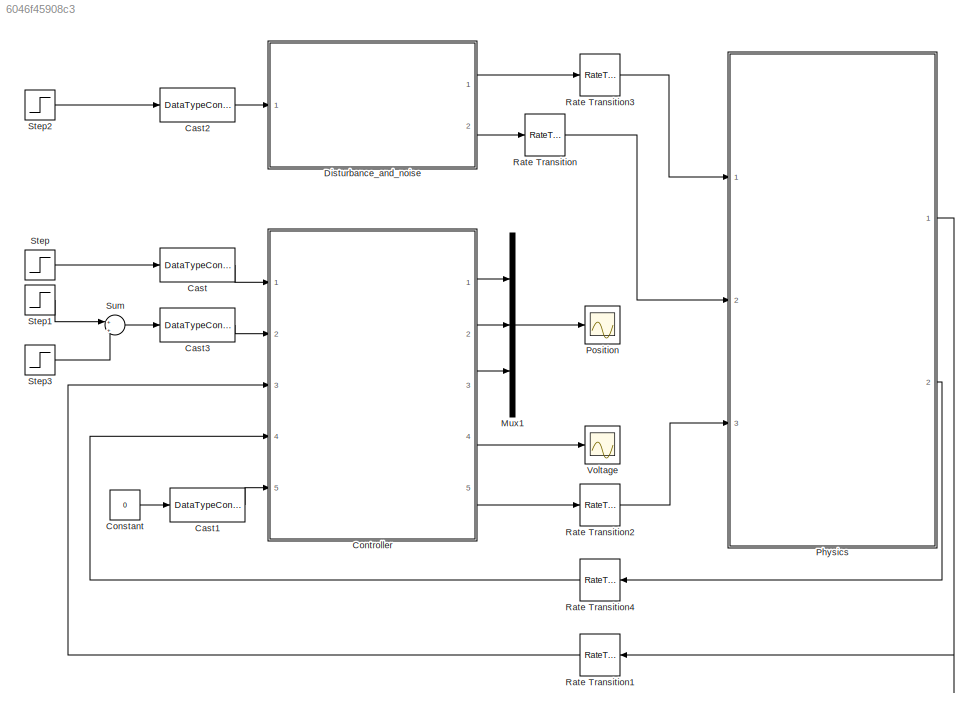
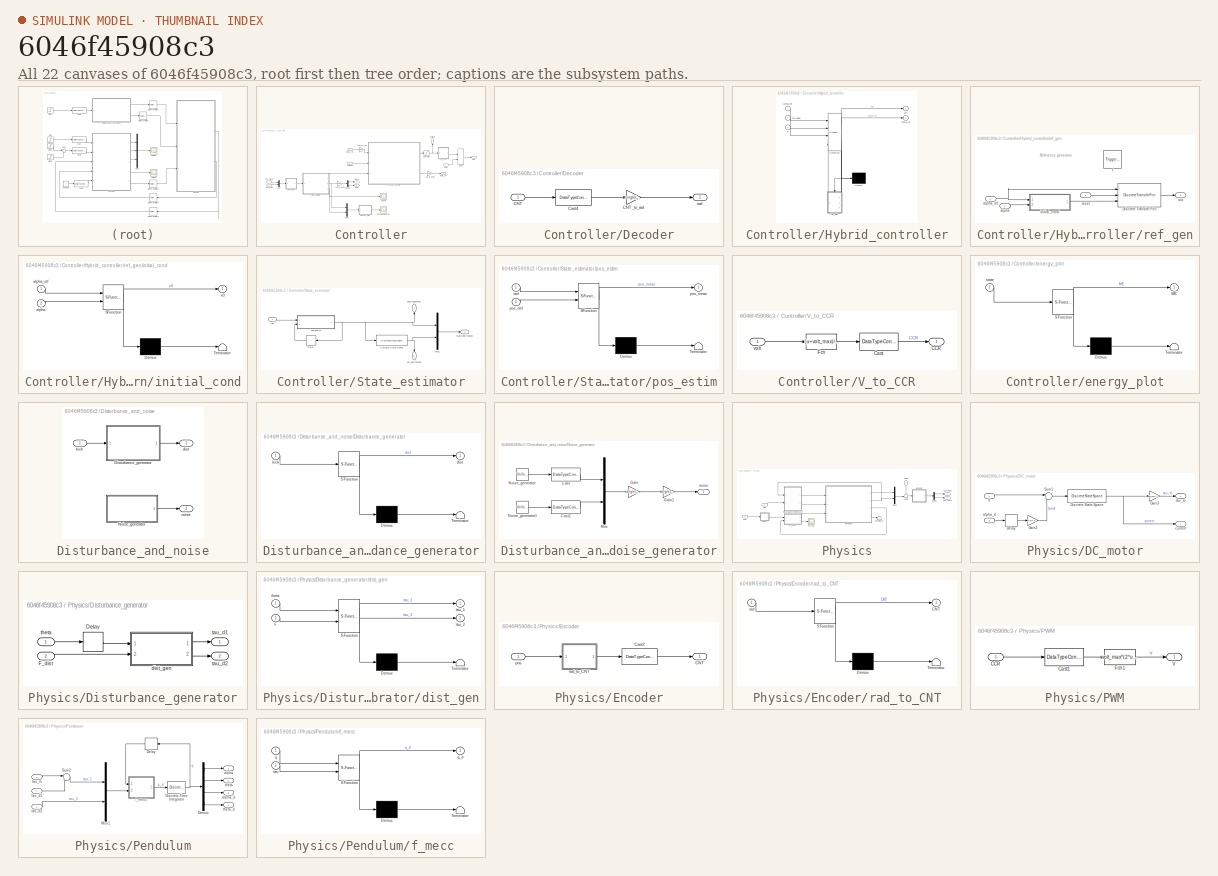
[diagram: thumbnail index - all 22 canvases of the model, root first then tree order]
MODEL slx_6046f45908c3
KIND model
CONFIG AbsTol = auto
CONFIG EnableMultiTasking = off
CONFIG FixedStep = Ts_proc
CONFIG MaxStep = auto
CONFIG MinStep = auto
CONFIG RelTol = 1e-3
CONFIG SampleTimeConstraint = Unconstrained
CONFIG Solver = FixedStepDiscrete
CONFIG SolverName = FixedStepDiscrete
CONFIG StartTime = 0.0
CONFIG StopTime = 25
WORKSPACE source: external: MAT-File  (data not in archive)
BLOCK [DataTypeConversion] Cast
  OutDataTypeStr = single
  RndMeth = Floor
  SaturateOnIntegerOverflow = off
BLOCK [DataTypeConversion] Cast1
  OutDataTypeStr = uint8
  RndMeth = Floor
  SaturateOnIntegerOverflow = off
BLOCK [DataTypeConversion] Cast2
  OutDataTypeStr = uint8
  RndMeth = Floor
  SaturateOnIntegerOverflow = off
BLOCK [DataTypeConversion] Cast3
  OutDataTypeStr = uint8
  RndMeth = Floor
  SaturateOnIntegerOverflow = off
BLOCK [Constant] Constant
  Value = 0
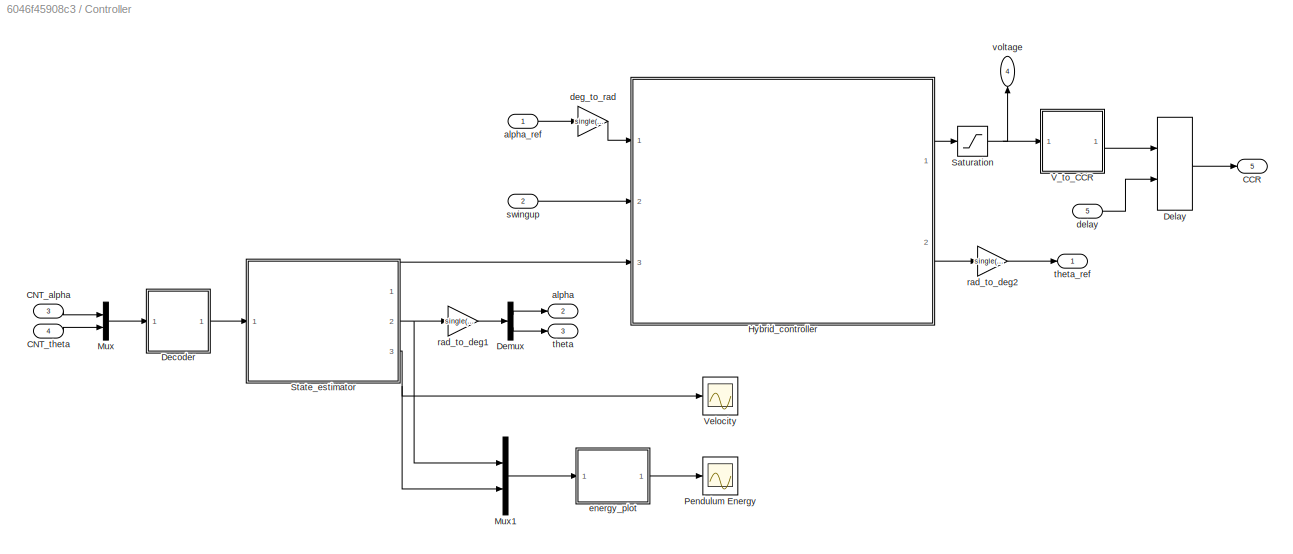
BLOCK [SubSystem] Controller
  FunctionInterfaceSpec = Allow arguments
  Ports = [5, 5]
  RTWFcnName = controller
  RTWFcnNameOpts = User specified
  RTWFileNameOpts = Use function name
  RTWSystemCode = Nonreusable function
  RequestExecContextInheritance = off
  TreatAsAtomicUnit = on
BLOCK [Outport] Controller/CCR
  IconDisplay = Port number
  Port = 5
BLOCK [Inport] Controller/CNT_alpha
  IconDisplay = Port number
  Port = 3
BLOCK [Inport] Controller/CNT_theta
  IconDisplay = Port number
  Port = 4
BLOCK [SubSystem] Controller/Decoder
  Ports = [1, 1]
  RequestExecContextInheritance = off
BLOCK [Inport] Controller/Decoder/CNT
  IconDisplay = Port number
BLOCK [Gain] Controller/Decoder/CNT_to_rad
  Gain = single(2*pi)/encoder_res
  OutDataTypeStr = Inherit: Inherit via internal rule
  ParamDataTypeStr = Inherit: Inherit via internal rule
  SaturateOnIntegerOverflow = off
BLOCK [DataTypeConversion] Controller/Decoder/Cast4
  OutDataTypeStr = single
  RndMeth = Floor
  SaturateOnIntegerOverflow = off
BLOCK [Outport] Controller/Decoder/rad
  IconDisplay = Port number
BLOCK [Delay] Controller/Delay
  DelayLength = delay_input
  DelayLengthSource = Input port
  DelayLengthUpperLimit = 255
  InitialCondition = CCR_init
  InputPortMap = u0,p1
  Ports = [2, 1]
BLOCK [Demux] Controller/Demux
  DisplayOption = bar
  Outputs = 2
  Ports = [1, 2]
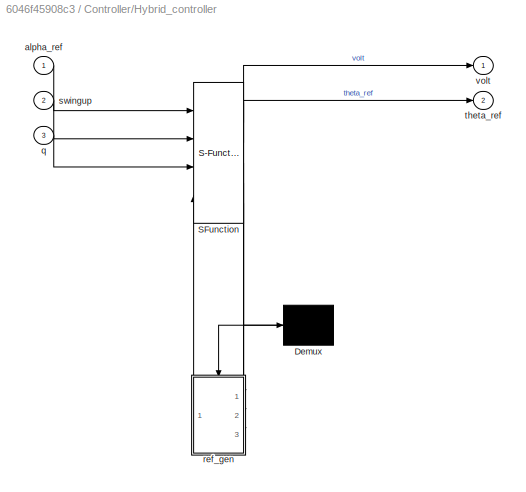
BLOCK [SubSystem] Controller/Hybrid_controller
  BlockKeywords = __PRM__SERIALIZED__DATA__:Stateflow Chart,Stateflow Diagram
  ErrorFcn = Stateflow.Translate.translate
  PermitHierarchicalResolution = ExplicitOnly
  Ports = [3, 2]
  RequestExecContextInheritance = off
  SFBlockType = Chart
  TreatAsAtomicUnit = on
BLOCK [Demux] Controller/Hybrid_controller/ Demux 
  Outputs = 1
  Ports = [1, 1]
BLOCK [S-Function] Controller/Hybrid_controller/ SFunction 
  EnableBusSupport = on
  FunctionName = sf_sfun
  Parameters = Jp,Larm,g,lp,mp,par_ctrl,th_lim,volt_max
  PortCounts = [4 6]
  Ports = [4, 6]
  SFcnIsStateOwnerBlock = off
  SFunctionDeploymentMode = off
  Tag = Stateflow S-Function 5
BLOCK [Inport] Controller/Hybrid_controller/alpha_ref
  IconDisplay = Port number
BLOCK [Inport] Controller/Hybrid_controller/q
  IconDisplay = Port number
  Port = 3
BLOCK [SubSystem] Controller/Hybrid_controller/ref_gen
  Ports = [3, 1, 0, 1]
  PreDeleteFcn = Stateflow.SLINSF.SimulinkMan.removePreDeleteFcn
  RequestExecContextInheritance = off
  UndoDeleteFcn = Stateflow.SLINSF.SimulinkMan.restorePreDeleteFcn
BLOCK [DiscreteTransferFcn] Controller/Hybrid_controller/ref_gen/Discrete Transfer Fcn
  Denominator = par_ctrl.ref_gen_den
  ExternalReset = Falling
  InitialStatesSource = Input port
  InputPortMap = u0,r7,p5
  Numerator = par_ctrl.ref_gen_num
  Ports = [3, 1]
BLOCK [Inport] Controller/Hybrid_controller/ref_gen/alpha
  IconDisplay = Port number
  OutDataTypeStr = single
  Port = 2
  PortDimensions = 1
  SignalType = real
  VarSizeSig = No
BLOCK [Inport] Controller/Hybrid_controller/ref_gen/alpha_ref
  IconDisplay = Port number
  OutDataTypeStr = single
  PortDimensions = 1
  SignalType = real
  VarSizeSig = No
BLOCK [TriggerPort] Controller/Hybrid_controller/ref_gen/f
  CopyFcn = Stateflow.SLINSF.SimulinkMan.removeBlockPreDeleteFcn
  Ports = []
  PreDeleteFcn = Stateflow.SLINSF.SimulinkMan.unsafePredeleteFcn
  StatesWhenEnabling = held
  TriggerType = function-call
  VariantControl = (inherit)
BLOCK [SubSystem] Controller/Hybrid_controller/ref_gen/initial_cond
  ErrorFcn = Stateflow.Translate.translate
  PermitHierarchicalResolution = ExplicitOnly
  Ports = [2, 1]
  RequestExecContextInheritance = off
  SFBlockType = MATLAB Function
BLOCK [Demux] Controller/Hybrid_controller/ref_gen/initial_cond/ Demux 
  Outputs = 1
  Ports = [1, 1]
BLOCK [S-Function] Controller/Hybrid_controller/ref_gen/initial_cond/ SFunction 
  EnableBusSupport = off
  FunctionName = sf_sfun
  Parameters = par_ctrl
  PortCounts = [2 2]
  Ports = [2, 2]
  SFcnIsStateOwnerBlock = off
  SFunctionDeploymentMode = off
  Tag = Stateflow S-Function 8
BLOCK [Terminator] Controller/Hybrid_controller/ref_gen/initial_cond/ Terminator 
BLOCK [Inport] Controller/Hybrid_controller/ref_gen/initial_cond/alpha
  IconDisplay = Port number
  Port = 2
BLOCK [Inport] Controller/Hybrid_controller/ref_gen/initial_cond/alpha_ref
  IconDisplay = Port number
BLOCK [Outport] Controller/Hybrid_controller/ref_gen/initial_cond/x0
  IconDisplay = Port number
BLOCK [Outport] Controller/Hybrid_controller/ref_gen/out
  IconDisplay = Port number
  OutDataTypeStr = single
BLOCK [Inport] Controller/Hybrid_controller/ref_gen/reset
  IconDisplay = Port number
  OutDataTypeStr = int8
  Port = 3
  PortDimensions = 1
  SignalType = real
  VarSizeSig = No
BLOCK [Inport] Controller/Hybrid_controller/swingup
  IconDisplay = Port number
  Port = 2
BLOCK [Outport] Controller/Hybrid_controller/theta_ref
  IconDisplay = Port number
  Port = 2
BLOCK [Outport] Controller/Hybrid_controller/volt
  IconDisplay = Port number
BLOCK [Mux] Controller/Mux
  DisplayOption = bar
  Inputs = 2
  Ports = [2, 1]
BLOCK [Mux] Controller/Mux1
  DisplayOption = bar
  Inputs = 2
  Ports = [2, 1]
BLOCK [Scope] Controller/Pendulum Energy
  Floating = off
  NumInputPorts = 1
  Ports = [1]
  ScopeSpecificationString = Simulink.scopes.TimeScopeBlockCfg('CurrentConfiguration', extmgr.ConfigurationSet(extmgr.Configuration('Core','General UI',true),extmgr.Configuration('Core','Source UI',true),extmgr.Configuration('Sources','WiredSimulink',true,'DataLoggingVariableName','ScopeData1'),extmgr.Configuration('Visuals','Time Domain',true,'SerializedDisplays',{struct('MinYLimReal','-0.45894','MaxYLimReal','0.24336','YLab...<+1545ch>
BLOCK [Saturate] Controller/Saturation
  InputPortMap = u0
  LowerLimit = -volt_max
  Ports = [1, 1]
  UpperLimit = volt_max
BLOCK [SubSystem] Controller/State_estimator
  Ports = [1, 3]
  RequestExecContextInheritance = off
BLOCK [Delay] Controller/State_estimator/Delay
  DelayLength = 1
  InitialCondition = q_init
  InputPortMap = u0
  Ports = [1, 1]
BLOCK [DiscreteStateSpace] Controller/State_estimator/Discrete State-Space
  A = dpole_cut*eye(2)
  B = eye(2)
  C = -1/single(Ts_ctrl)*(1-dpole_cut)^2*eye(2)
  D = (1-dpole_cut)/single(Ts_ctrl)*eye(2)
  InitialCondition = 1/(1-dpole_cut)*eye(2)*q_init
  SampleTime = Ts_ctrl
BLOCK [Mux] Controller/State_estimator/Mux1
  DisplayOption = bar
  Inputs = 2
  Ports = [2, 1]
BLOCK [SubSystem] Controller/State_estimator/pos_estim
  ErrorFcn = Stateflow.Translate.translate
  PermitHierarchicalResolution = ExplicitOnly
  Ports = [2, 1]
  RequestExecContextInheritance = off
  SFBlockType = MATLAB Function
BLOCK [Demux] Controller/State_estimator/pos_estim/ Demux 
  Outputs = 1
  Ports = [1, 1]
BLOCK [S-Function] Controller/State_estimator/pos_estim/ SFunction 
  EnableBusSupport = on
  FunctionName = sf_sfun
  PortCounts = [2 2]
  Ports = [2, 2]
  SFcnIsStateOwnerBlock = off
  SFunctionDeploymentMode = off
  Tag = Stateflow S-Function 4
BLOCK [Terminator] Controller/State_estimator/pos_estim/ Terminator 
BLOCK [Outport] Controller/State_estimator/pos_estim/pos_meas
  IconDisplay = Port number
BLOCK [Inport] Controller/State_estimator/pos_estim/pos_old
  IconDisplay = Port number
  Port = 2
BLOCK [Inport] Controller/State_estimator/pos_estim/rad
  IconDisplay = Port number
BLOCK [Outport] Controller/State_estimator/pos_measured
  IconDisplay = Port number
  Port = 2
BLOCK [Inport] Controller/State_estimator/rad
  IconDisplay = Port number
BLOCK [Outport] Controller/State_estimator/state_estimated
  IconDisplay = Port number
BLOCK [Outport] Controller/State_estimator/vel_estimated
  IconDisplay = Port number
  Port = 3
BLOCK [SubSystem] Controller/V_to_CCR
  Ports = [1, 1]
  RequestExecContextInheritance = off
BLOCK [Outport] Controller/V_to_CCR/CCR
  IconDisplay = Port number
BLOCK [DataTypeConversion] Controller/V_to_CCR/Cast
  OutDataTypeStr = uint16
  RndMeth = Round
  SaturateOnIntegerOverflow = off
BLOCK [Fcn] Controller/V_to_CCR/Fcn
  Expr = (u+volt_max)/(2*volt_max)*CCR_max
BLOCK [Inport] Controller/V_to_CCR/volt
  IconDisplay = Port number
BLOCK [Scope] Controller/Velocity
  Floating = off
  NumInputPorts = 1
  Ports = [1]
  ScopeSpecificationString = Simulink.scopes.TimeScopeBlockCfg('CurrentConfiguration', extmgr.ConfigurationSet(extmgr.Configuration('Core','General UI',true),extmgr.Configuration('Core','Source UI',true),extmgr.Configuration('Sources','WiredSimulink',true,'DataLoggingVariableName','ScopeData3'),extmgr.Configuration('Visuals','Time Domain',true,'SerializedDisplays',{struct('MinYLimReal','-101.3392','MaxYLimReal','780.14161','Y...<+1637ch>
BLOCK [Outport] Controller/alpha
  IconDisplay = Port number
  Port = 2
BLOCK [Inport] Controller/alpha_ref
  IconDisplay = Port number
BLOCK [Gain] Controller/deg_to_rad
  Gain = single(pi/180)
  OutDataTypeStr = Inherit: Inherit via internal rule
  ParamDataTypeStr = Inherit: Inherit via internal rule
  SaturateOnIntegerOverflow = off
BLOCK [Inport] Controller/delay
  IconDisplay = Port number
  Port = 5
BLOCK [SubSystem] Controller/energy_plot
  ErrorFcn = Stateflow.Translate.translate
  PermitHierarchicalResolution = ExplicitOnly
  Ports = [1, 1]
  RequestExecContextInheritance = off
  SFBlockType = MATLAB Function
BLOCK [Demux] Controller/energy_plot/ Demux 
  Outputs = 1
  Ports = [1, 1]
BLOCK [S-Function] Controller/energy_plot/ SFunction 
  EnableBusSupport = on
  FunctionName = sf_sfun
  Parameters = Jp,Larm,g,lp,mp
  PortCounts = [1 2]
  Ports = [1, 2]
  SFcnIsStateOwnerBlock = off
  SFunctionDeploymentMode = off
  Tag = Stateflow S-Function 6
BLOCK [Terminator] Controller/energy_plot/ Terminator 
BLOCK [Outport] Controller/energy_plot/ME
  IconDisplay = Port number
BLOCK [Inport] Controller/energy_plot/state
  IconDisplay = Port number
BLOCK [Gain] Controller/rad_to_deg1
  Gain = single(180/pi)
  OutDataTypeStr = Inherit: Inherit via internal rule
  ParamDataTypeStr = Inherit: Inherit via internal rule
  SaturateOnIntegerOverflow = off
BLOCK [Gain] Controller/rad_to_deg2
  Gain = single(180/pi)
  OutDataTypeStr = Inherit: Inherit via internal rule
  ParamDataTypeStr = Inherit: Inherit via internal rule
  SaturateOnIntegerOverflow = off
BLOCK [Inport] Controller/swingup
  IconDisplay = Port number
  Port = 2
BLOCK [Outport] Controller/theta
  IconDisplay = Port number
  Port = 3
BLOCK [Outport] Controller/theta_ref
  IconDisplay = Port number
BLOCK [Outport] Controller/voltage
  IconDisplay = Port number
  Port = 4
BLOCK [SubSystem] Disturbance_and_noise
  FunctionInterfaceSpec = Allow arguments
  Ports = [1, 2]
  RTWFcnName = disturbance_and_noise
  RTWFcnNameOpts = User specified
  RTWFileNameOpts = Use function name
  RTWSystemCode = Nonreusable function
  RequestExecContextInheritance = off
  TreatAsAtomicUnit = on
BLOCK [SubSystem] Disturbance_and_noise/Disturbance_generator
  BlockKeywords = __PRM__SERIALIZED__DATA__:Stateflow Chart,Stateflow Diagram
  ErrorFcn = Stateflow.Translate.translate
  PermitHierarchicalResolution = ExplicitOnly
  Ports = [1, 1]
  RequestExecContextInheritance = off
  SFBlockType = Chart
  TreatAsAtomicUnit = on
BLOCK [Demux] Disturbance_and_noise/Disturbance_generator/ Demux 
  Outputs = 1
  Ports = [1, 1]
BLOCK [S-Function] Disturbance_and_noise/Disturbance_generator/ SFunction 
  EnableBusSupport = on
  FunctionName = sf_sfun
  Parameters = par_dn
  PortCounts = [1 2]
  Ports = [1, 2]
  SFcnIsStateOwnerBlock = off
  SFunctionDeploymentMode = off
  Tag = Stateflow S-Function 7
BLOCK [Terminator] Disturbance_and_noise/Disturbance_generator/ Terminator 
BLOCK [Outport] Disturbance_and_noise/Disturbance_generator/dist
  IconDisplay = Port number
BLOCK [Inport] Disturbance_and_noise/Disturbance_generator/kick
  IconDisplay = Port number
BLOCK [SubSystem] Disturbance_and_noise/Noise_generator
  Ports = [0, 1]
  RequestExecContextInheritance = off
BLOCK [DataTypeConversion] Disturbance_and_noise/Noise_generator/Cast
  OutDataTypeStr = single
  RndMeth = Floor
  SaturateOnIntegerOverflow = off
BLOCK [DataTypeConversion] Disturbance_and_noise/Noise_generator/Cast1
  OutDataTypeStr = single
  RndMeth = Floor
  SaturateOnIntegerOverflow = off
BLOCK [Gain] Disturbance_and_noise/Noise_generator/Gain
  Gain = single(2*pi)/encoder_res
  OutDataTypeStr = Inherit: Inherit via internal rule
  ParamDataTypeStr = Inherit: Inherit via internal rule
  SaturateOnIntegerOverflow = off
BLOCK [Gain] Disturbance_and_noise/Noise_generator/Gain1
  Gain = single(par_dn.noise_amp)
  OutDataTypeStr = Inherit: Inherit via internal rule
  ParamDataTypeStr = Inherit: Inherit via internal rule
  SaturateOnIntegerOverflow = off
BLOCK [Mux] Disturbance_and_noise/Noise_generator/Mux
  DisplayOption = bar
  Inputs = 2
  Ports = [2, 1]
BLOCK [UniformRandomNumber] Disturbance_and_noise/Noise_generator/Noise_generator
  SampleTime = Ts_ctrl
  Seed = 2342
BLOCK [UniformRandomNumber] Disturbance_and_noise/Noise_generator/Noise_generator1
  SampleTime = Ts_ctrl
  Seed = 1558
BLOCK [Outport] Disturbance_and_noise/Noise_generator/noise
  IconDisplay = Port number
BLOCK [Outport] Disturbance_and_noise/dist
  IconDisplay = Port number
BLOCK [Inport] Disturbance_and_noise/kick
  IconDisplay = Port number
BLOCK [Outport] Disturbance_and_noise/noise
  IconDisplay = Port number
  Port = 2
BLOCK [Mux] Mux1
  DisplayOption = bar
  Inputs = 3
  Ports = [3, 1]
BLOCK [SubSystem] Physics
  FunctionInterfaceSpec = Allow arguments
  Ports = [3, 2]
  RTWFcnName = physics
  RTWFcnNameOpts = User specified
  RTWFileNameOpts = Use function name
  RTWSystemCode = Nonreusable function
  RequestExecContextInheritance = off
  TreatAsAtomicUnit = on
BLOCK [Inport] Physics/CCR
  IconDisplay = Port number
  Port = 3
BLOCK [Outport] Physics/CNT_alpha
  IconDisplay = Port number
BLOCK [Outport] Physics/CNT_theta
  IconDisplay = Port number
  Port = 2
BLOCK [SubSystem] Physics/DC_motor
  Ports = [2, 2]
  RequestExecContextInheritance = off
BLOCK [Delay] Physics/DC_motor/Delay
  DelayLength = 1
  InitialCondition = 0
  InputPortMap = u0
  Ports = [1, 1]
BLOCK [DiscreteStateSpace] Physics/DC_motor/Discrete State-Space
  A = -(Rm*Ts_proc - 2*Lm)/(Rm*Ts_proc + 2*Lm)
  B = Ts_proc/(2*Lm + Rm*Ts_proc)*(1-(Rm*Ts_proc - 2*Lm)/(Rm*Ts_proc + 2*Lm))
  D = Ts_proc/(2*Lm + Rm*Ts_proc)
  InitialCondition = single(0)
  SampleTime = Ts_proc
BLOCK [Gain] Physics/DC_motor/Gain2
  Gain = Kg*Ke
  OutDataTypeStr = Inherit: Inherit via internal rule
  ParamDataTypeStr = Inherit: Inherit via internal rule
  SaturateOnIntegerOverflow = off
BLOCK [Gain] Physics/DC_motor/Gain3
  Gain = eta_g*Kg*Kt
  OutDataTypeStr = Inherit: Inherit via internal rule
  ParamDataTypeStr = Inherit: Inherit via internal rule
  SaturateOnIntegerOverflow = off
BLOCK [Sum] Physics/DC_motor/Sum1
  IconShape = round
  InputSameDT = off
  Inputs = |+-
  OutDataTypeStr = Inherit: Inherit via internal rule
  Ports = [2, 1]
  SaturateOnIntegerOverflow = off
BLOCK [Inport] Physics/DC_motor/V
  IconDisplay = Port number
BLOCK [Inport] Physics/DC_motor/alpha_d
  IconDisplay = Port number
  Port = 2
BLOCK [Outport] Physics/DC_motor/current
  IconDisplay = Port number
  Port = 2
BLOCK [Outport] Physics/DC_motor/tau_m
  IconDisplay = Port number
BLOCK [Demux] Physics/Demux
  DisplayOption = bar
  Outputs = 2
  Ports = [1, 2]
BLOCK [SubSystem] Physics/Disturbance_generator
  Ports = [2, 2]
  RequestExecContextInheritance = off
BLOCK [Delay] Physics/Disturbance_generator/Delay
  DelayLength = 1
  InitialCondition = q_init(2)
  InputPortMap = u0
  Ports = [1, 1]
BLOCK [Inport] Physics/Disturbance_generator/F_dist
  IconDisplay = Port number
  Port = 2
BLOCK [SubSystem] Physics/Disturbance_generator/dist_gen
  ErrorFcn = Stateflow.Translate.translate
  PermitHierarchicalResolution = ExplicitOnly
  Ports = [2, 2]
  RequestExecContextInheritance = off
  SFBlockType = MATLAB Function
BLOCK [Demux] Physics/Disturbance_generator/dist_gen/ Demux 
  Outputs = 1
  Ports = [1, 1]
BLOCK [S-Function] Physics/Disturbance_generator/dist_gen/ SFunction 
  EnableBusSupport = on
  FunctionName = sf_sfun
  Parameters = Larm,Lp
  PortCounts = [2 3]
  Ports = [2, 3]
  SFcnIsStateOwnerBlock = off
  SFunctionDeploymentMode = off
  Tag = Stateflow S-Function 3
BLOCK [Terminator] Physics/Disturbance_generator/dist_gen/ Terminator 
BLOCK [Inport] Physics/Disturbance_generator/dist_gen/F
  IconDisplay = Port number
  Port = 2
BLOCK [Outport] Physics/Disturbance_generator/dist_gen/tau_1
  IconDisplay = Port number
BLOCK [Outport] Physics/Disturbance_generator/dist_gen/tau_2
  IconDisplay = Port number
  Port = 2
BLOCK [Inport] Physics/Disturbance_generator/dist_gen/theta
  IconDisplay = Port number
BLOCK [Outport] Physics/Disturbance_generator/tau_d1
  IconDisplay = Port number
BLOCK [Outport] Physics/Disturbance_generator/tau_d2
  IconDisplay = Port number
  Port = 2
BLOCK [Inport] Physics/Disturbance_generator/theta
  IconDisplay = Port number
BLOCK [SubSystem] Physics/Encoder
  Ports = [1, 1]
  RequestExecContextInheritance = off
BLOCK [Outport] Physics/Encoder/CNT
  IconDisplay = Port number
BLOCK [DataTypeConversion] Physics/Encoder/Cast2
  OutDataTypeStr = uint16
  RndMeth = Floor
  SaturateOnIntegerOverflow = off
BLOCK [Inport] Physics/Encoder/pos
  IconDisplay = Port number
BLOCK [SubSystem] Physics/Encoder/rad_to_CNT
  ErrorFcn = Stateflow.Translate.translate
  PermitHierarchicalResolution = ExplicitOnly
  Ports = [1, 1]
  RequestExecContextInheritance = off
  SFBlockType = MATLAB Function
BLOCK [Demux] Physics/Encoder/rad_to_CNT/ Demux 
  Outputs = 1
  Ports = [1, 1]
BLOCK [S-Function] Physics/Encoder/rad_to_CNT/ SFunction 
  EnableBusSupport = on
  FunctionName = sf_sfun
  Parameters = encoder_res
  PortCounts = [1 2]
  Ports = [1, 2]
  SFcnIsStateOwnerBlock = off
  SFunctionDeploymentMode = off
  Tag = Stateflow S-Function 1
BLOCK [Terminator] Physics/Encoder/rad_to_CNT/ Terminator 
BLOCK [Outport] Physics/Encoder/rad_to_CNT/CNT
  IconDisplay = Port number
BLOCK [Inport] Physics/Encoder/rad_to_CNT/rad
  IconDisplay = Port number
BLOCK [Mux] Physics/Mux1
  DisplayOption = bar
  Inputs = 2
  Ports = [2, 1]
BLOCK [SubSystem] Physics/PWM
  Ports = [1, 1]
  RequestExecContextInheritance = off
BLOCK [Inport] Physics/PWM/CCR
  IconDisplay = Port number
BLOCK [DataTypeConversion] Physics/PWM/Cast1
  OutDataTypeStr = single
  RndMeth = Floor
  SaturateOnIntegerOverflow = off
BLOCK [Fcn] Physics/PWM/Fcn1
  Expr = volt_max*(2*u/CCR_max-1)
BLOCK [Outport] Physics/PWM/V
  IconDisplay = Port number
BLOCK [SubSystem] Physics/Pendulum
  Ports = [3, 4]
  RequestExecContextInheritance = off
BLOCK [Delay] Physics/Pendulum/Delay
  DelayLength = 1
  InitialCondition = [q_init;0;0]
  InputPortMap = u0
  Ports = [1, 1]
BLOCK [Demux] Physics/Pendulum/Demux
  DisplayOption = bar
  Ports = [1, 4]
BLOCK [DiscreteIntegrator] Physics/Pendulum/Discrete-Time Integrator
  ICPrevOutput = DiscIntNeverNeededParam
  ICPrevScaledInput = DiscIntNeverNeededParam
  InitialCondition = [q_init;0;0]
  InitialConditionSetting = Auto
  IntegratorMethod = Integration: Trapezoidal
  Ports = [1, 1]
  SampleTime = Ts_proc
  gainval = single(1.0)
BLOCK [Mux] Physics/Pendulum/Mux1
  DisplayOption = bar
  Inputs = 2
  Ports = [2, 1]
BLOCK [Sum] Physics/Pendulum/Sum2
  IconShape = round
  InputSameDT = off
  Inputs = |++
  OutDataTypeStr = Inherit: Inherit via internal rule
  Ports = [2, 1]
  SaturateOnIntegerOverflow = off
BLOCK [Outport] Physics/Pendulum/alpha
  IconDisplay = Port number
BLOCK [Outport] Physics/Pendulum/alpha_d
  IconDisplay = Port number
  Port = 3
BLOCK [SubSystem] Physics/Pendulum/f_mecc
  ErrorFcn = Stateflow.Translate.translate
  PermitHierarchicalResolution = ExplicitOnly
  Ports = [2, 1]
  RequestExecContextInheritance = off
  SFBlockType = MATLAB Function
  TreatAsAtomicUnit = on
BLOCK [Demux] Physics/Pendulum/f_mecc/ Demux 
  Outputs = 1
  Ports = [1, 1]
BLOCK [S-Function] Physics/Pendulum/f_mecc/ SFunction 
  EnableBusSupport = on
  FunctionName = sf_sfun
  Parameters = J0,Jp,Larm,bma,bp,g,lp,mp
  PortCounts = [2 2]
  Ports = [2, 2]
  SFcnIsStateOwnerBlock = off
  SFunctionDeploymentMode = off
  Tag = Stateflow S-Function 2
BLOCK [Terminator] Physics/Pendulum/f_mecc/ Terminator 
BLOCK [Inport] Physics/Pendulum/f_mecc/q
  IconDisplay = Port number
BLOCK [Outport] Physics/Pendulum/f_mecc/q_d
  IconDisplay = Port number
BLOCK [Inport] Physics/Pendulum/f_mecc/tau
  IconDisplay = Port number
  Port = 2
BLOCK [Inport] Physics/Pendulum/tau_d1
  IconDisplay = Port number
BLOCK [Inport] Physics/Pendulum/tau_d2
  IconDisplay = Port number
  Port = 2
BLOCK [Inport] Physics/Pendulum/tau_m
  IconDisplay = Port number
  Port = 3
BLOCK [Outport] Physics/Pendulum/theta
  IconDisplay = Port number
  Port = 2
BLOCK [Outport] Physics/Pendulum/theta_d
  IconDisplay = Port number
  Port = 4
BLOCK [Sum] Physics/Sum3
  IconShape = round
  InputSameDT = off
  Inputs = ++|
  OutDataTypeStr = Inherit: Inherit via internal rule
  Ports = [2, 1]
  SaturateOnIntegerOverflow = off
BLOCK [Terminator] Physics/Terminator
BLOCK [Scope] Physics/current
  Floating = off
  NumInputPorts = 1
  Ports = [1]
  ScopeSpecificationString = Simulink.scopes.TimeScopeBlockCfg('CurrentConfiguration', extmgr.ConfigurationSet(extmgr.Configuration('Core','General UI',true),extmgr.Configuration('Core','Source UI',true),extmgr.Configuration('Sources','WiredSimulink',true,'DataLoggingVariableName','ScopeData2'),extmgr.Configuration('Visuals','Time Domain',true),extmgr.Configuration('Tools','Plot Navigation',true),extmgr.Configuration('Tools',...<+40ch>
BLOCK [Inport] Physics/dist
  IconDisplay = Port number
BLOCK [Inport] Physics/noise
  IconDisplay = Port number
  Port = 2
BLOCK [Scope] Position
  Floating = off
  NumInputPorts = 1
  Ports = [1]
  ScopeSpecificationString = Simulink.scopes.TimeScopeBlockCfg('CurrentConfiguration', extmgr.ConfigurationSet(extmgr.Configuration('Core','General UI',true),extmgr.Configuration('Core','Source UI',true),extmgr.Configuration('Sources','WiredSimulink',true,'DataLoggingVariableName','ScopeData1'),extmgr.Configuration('Visuals','Time Domain',true,'SerializedDisplays',{struct('MinYLimReal','-247.5','MaxYLimReal','427.5','YLabelRe...<+1857ch>
BLOCK [RateTransition] Rate Transition
  InitialCondition = single([0;0])
  OutPortSampleTime = Ts_proc
BLOCK [RateTransition] Rate Transition1
  InitialCondition = single(fix(q_init(1)/(2*pi)*encoder_res))
  OutPortSampleTime = Ts_ctrl
BLOCK [RateTransition] Rate Transition2
  InitialCondition = CCR_init
  OutPortSampleTime = Ts_proc
BLOCK [RateTransition] Rate Transition3
  InitialCondition = single(0)
  OutPortSampleTime = Ts_proc
BLOCK [RateTransition] Rate Transition4
  InitialCondition = single(fix(q_init(2)/(2*pi)*encoder_res))
  OutPortSampleTime = Ts_ctrl
BLOCK [Step] Step
  After = 0
  Before = 180
  SampleTime = Ts_ctrl
  Time = 20
BLOCK [Step] Step1
  SampleTime = Ts_ctrl
  Time = 4
BLOCK [Step] Step2
  SampleTime = Ts_ctrl
  Time = 16
BLOCK [Step] Step3
  After = -1
  SampleTime = Ts_ctrl
  Time = 20
BLOCK [Sum] Sum
  IconShape = round
  InputSameDT = off
  Inputs = +|+
  OutDataTypeStr = Inherit: Inherit via internal rule
  Ports = [2, 1]
  SaturateOnIntegerOverflow = off
BLOCK [Scope] Voltage
  Floating = off
  NumInputPorts = 1
  Ports = [1]
  ScopeSpecificationString = Simulink.scopes.TimeScopeBlockCfg('CurrentConfiguration', extmgr.ConfigurationSet(extmgr.Configuration('Core','General UI',true),extmgr.Configuration('Core','Source UI',true),extmgr.Configuration('Sources','WiredSimulink',true),extmgr.Configuration('Visuals','Time Domain',true,'SerializedDisplays',{struct('MinYLimReal','-7.5','MaxYLimReal','7.5','YLabelReal','','MinYLimMag','0.00000','MaxYLimMag',...<+1404ch>
ANNOTATION Controller/Hybrid_controller/ref_gen: Reference generator
LINE Cast1:1 -> Controller:5
LINE Cast2:1 -> Disturbance_and_noise:1
LINE Cast3:1 -> Controller:2
LINE Cast:1 -> Controller:1
LINE Constant:1 -> Cast1:1
LINE Controller/CNT_alpha:1 -> Controller/Mux:1
LINE Controller/CNT_theta:1 -> Controller/Mux:2
LINE Controller/Decoder/CNT:1 -> Controller/Decoder/Cast4:1
LINE Controller/Decoder/CNT_to_rad:1 -> Controller/Decoder/rad:1
LINE Controller/Decoder/Cast4:1 -> Controller/Decoder/CNT_to_rad:1
LINE Controller/Decoder:1 -> Controller/State_estimator:1
LINE Controller/Delay:1 -> Controller/CCR:1
LINE Controller/Demux:1 -> Controller/alpha:1
LINE Controller/Demux:2 -> Controller/theta:1
LINE Controller/Hybrid_controller:1 -> Controller/Saturation:1
LINE Controller/Hybrid_controller:2 -> Controller/rad_to_deg2:1
LINE Controller/Mux1:1 -> Controller/energy_plot:1
LINE Controller/Mux:1 -> Controller/Decoder:1
NET Controller/Saturation:1 -> Controller/V_to_CCR:1, Controller/voltage:1
LINE Controller/State_estimator/Delay:1 -> Controller/State_estimator/pos_estim:2
NET Controller/State_estimator/Discrete State-Space:1 -> Controller/State_estimator/Mux1:2, Controller/State_estimator/vel_estimated:1
LINE Controller/State_estimator/Mux1:1 -> Controller/State_estimator/state_estimated:1
NET Controller/State_estimator/pos_estim:1 -> Controller/State_estimator/Delay:1, Controller/State_estimator/Discrete State-Space:1, Controller/State_estimator/Mux1:1, Controller/State_estimator/pos_measured:1
LINE Controller/State_estimator/rad:1 -> Controller/State_estimator/pos_estim:1
LINE Controller/State_estimator:1 -> Controller/Hybrid_controller:3
NET Controller/State_estimator:2 -> Controller/Mux1:1, Controller/rad_to_deg1:1
NET Controller/State_estimator:3 -> Controller/Mux1:2, Controller/Velocity:1
LINE Controller/V_to_CCR/Cast:1 -> Controller/V_to_CCR/CCR:1
LINE Controller/V_to_CCR/Fcn:1 -> Controller/V_to_CCR/Cast:1
LINE Controller/V_to_CCR/volt:1 -> Controller/V_to_CCR/Fcn:1
LINE Controller/V_to_CCR:1 -> Controller/Delay:1
LINE Controller/alpha_ref:1 -> Controller/deg_to_rad:1
LINE Controller/deg_to_rad:1 -> Controller/Hybrid_controller:1
LINE Controller/delay:1 -> Controller/Delay:2
LINE Controller/energy_plot:1 -> Controller/Pendulum Energy:1
LINE Controller/rad_to_deg1:1 -> Controller/Demux:1
LINE Controller/rad_to_deg2:1 -> Controller/theta_ref:1
LINE Controller/swingup:1 -> Controller/Hybrid_controller:2
LINE Controller:1 -> Mux1:1
LINE Controller:2 -> Mux1:2
LINE Controller:3 -> Mux1:3
LINE Controller:4 -> Voltage:1
LINE Controller:5 -> Rate Transition2:1
LINE Disturbance_and_noise/Disturbance_generator:1 -> Disturbance_and_noise/dist:1
LINE Disturbance_and_noise/Noise_generator/Cast1:1 -> Disturbance_and_noise/Noise_generator/Mux:2
LINE Disturbance_and_noise/Noise_generator/Cast:1 -> Disturbance_and_noise/Noise_generator/Mux:1
LINE Disturbance_and_noise/Noise_generator/Gain1:1 -> Disturbance_and_noise/Noise_generator/noise:1
LINE Disturbance_and_noise/Noise_generator/Gain:1 -> Disturbance_and_noise/Noise_generator/Gain1:1
LINE Disturbance_and_noise/Noise_generator/Mux:1 -> Disturbance_and_noise/Noise_generator/Gain:1
LINE Disturbance_and_noise/Noise_generator/Noise_generator1:1 -> Disturbance_and_noise/Noise_generator/Cast1:1
LINE Disturbance_and_noise/Noise_generator/Noise_generator:1 -> Disturbance_and_noise/Noise_generator/Cast:1
LINE Disturbance_and_noise/Noise_generator:1 -> Disturbance_and_noise/noise:1
LINE Disturbance_and_noise/kick:1 -> Disturbance_and_noise/Disturbance_generator:1
LINE Disturbance_and_noise:1 -> Rate Transition3:1
LINE Disturbance_and_noise:2 -> Rate Transition:1
LINE Mux1:1 -> Position:1
LINE Physics/CCR:1 -> Physics/PWM:1
LINE Physics/DC_motor/Delay:1 -> Physics/DC_motor/Gain2:1
NET Physics/DC_motor/Discrete State-Space:1 -> Physics/DC_motor/Gain3:1, Physics/DC_motor/current:1
LINE Physics/DC_motor/Gain2:1 -> Physics/DC_motor/Sum1:2
LINE Physics/DC_motor/Gain3:1 -> Physics/DC_motor/tau_m:1
LINE Physics/DC_motor/Sum1:1 -> Physics/DC_motor/Discrete State-Space:1
LINE Physics/DC_motor/V:1 -> Physics/DC_motor/Sum1:1
LINE Physics/DC_motor/alpha_d:1 -> Physics/DC_motor/Delay:1
LINE Physics/DC_motor:1 -> Physics/Pendulum:3
LINE Physics/DC_motor:2 -> Physics/current:1
LINE Physics/Demux:1 -> Physics/CNT_alpha:1
LINE Physics/Demux:2 -> Physics/CNT_theta:1
LINE Physics/Disturbance_generator/Delay:1 -> Physics/Disturbance_generator/dist_gen:1
LINE Physics/Disturbance_generator/F_dist:1 -> Physics/Disturbance_generator/dist_gen:2
LINE Physics/Disturbance_generator/dist_gen:1 -> Physics/Disturbance_generator/tau_d1:1
LINE Physics/Disturbance_generator/dist_gen:2 -> Physics/Disturbance_generator/tau_d2:1
LINE Physics/Disturbance_generator/theta:1 -> Physics/Disturbance_generator/Delay:1
LINE Physics/Disturbance_generator:1 -> Physics/Pendulum:1
LINE Physics/Disturbance_generator:2 -> Physics/Pendulum:2
LINE Physics/Encoder/Cast2:1 -> Physics/Encoder/CNT:1
LINE Physics/Encoder/pos:1 -> Physics/Encoder/rad_to_CNT:1
LINE Physics/Encoder/rad_to_CNT:1 -> Physics/Encoder/Cast2:1
LINE Physics/Encoder:1 -> Physics/Demux:1
LINE Physics/Mux1:1 -> Physics/Sum3:2
LINE Physics/PWM/CCR:1 -> Physics/PWM/Cast1:1
LINE Physics/PWM/Cast1:1 -> Physics/PWM/Fcn1:1
LINE Physics/PWM/Fcn1:1 -> Physics/PWM/V:1
LINE Physics/PWM:1 -> Physics/DC_motor:1
LINE Physics/Pendulum/Delay:1 -> Physics/Pendulum/f_mecc:1
LINE Physics/Pendulum/Demux:1 -> Physics/Pendulum/alpha:1
LINE Physics/Pendulum/Demux:2 -> Physics/Pendulum/theta:1
LINE Physics/Pendulum/Demux:3 -> Physics/Pendulum/alpha_d:1
LINE Physics/Pendulum/Demux:4 -> Physics/Pendulum/theta_d:1
NET Physics/Pendulum/Discrete-Time Integrator:1 -> Physics/Pendulum/Delay:1, Physics/Pendulum/Demux:1
LINE Physics/Pendulum/Mux1:1 -> Physics/Pendulum/f_mecc:2
LINE Physics/Pendulum/Sum2:1 -> Physics/Pendulum/Mux1:1
LINE Physics/Pendulum/f_mecc:1 -> Physics/Pendulum/Discrete-Time Integrator:1
LINE Physics/Pendulum/tau_d1:1 -> Physics/Pendulum/Sum2:2
LINE Physics/Pendulum/tau_d2:1 -> Physics/Pendulum/Mux1:2
LINE Physics/Pendulum/tau_m:1 -> Physics/Pendulum/Sum2:1
LINE Physics/Pendulum:1 -> Physics/Mux1:1
NET Physics/Pendulum:2 -> Physics/Disturbance_generator:1, Physics/Mux1:2
LINE Physics/Pendulum:3 -> Physics/DC_motor:2
LINE Physics/Pendulum:4 -> Physics/Terminator:1
LINE Physics/Sum3:1 -> Physics/Encoder:1
LINE Physics/dist:1 -> Physics/Disturbance_generator:2
LINE Physics/noise:1 -> Physics/Sum3:1
LINE Physics:1 -> Rate Transition1:1
LINE Physics:2 -> Rate Transition4:1
LINE Rate Transition1:1 -> Controller:3
LINE Rate Transition2:1 -> Physics:3
LINE Rate Transition3:1 -> Physics:1
LINE Rate Transition4:1 -> Controller:4
LINE Rate Transition:1 -> Physics:2
LINE Step1:1 -> Sum:1
LINE Step2:1 -> Cast2:1
LINE Step3:1 -> Sum:2
LINE Step:1 -> Cast:1
LINE Sum:1 -> Cast3:1
note: NET lines group one-source signal fan-out (src -> all destinations, sorted); 1:1 wires keep LINE
CHART Physics/Encoder/rad_to_CNT states=1 transitions=1
  STATE_LABEL 'eML_blk_kernel()'
  STATE_LABEL 'SCRIPT:\nfunction CNT = rad_to_CNT(rad,encoder_res)\n\nCNT = floor(mod(rad,single(2*pi))/single(2*pi)*encoder_res);\n'
CHART Physics/Pendulum/f_mecc states=1 transitions=1
  STATE_LABEL 'eML_blk_kernel()'
  STATE_LABEL 'SCRIPT:\nfunction q_d = f_mecc(q,tau,mp,J0,Jp,Larm,lp,g,bma,bp)\n%#codegen\n\n%    This function was generated by the Symbolic Math Toolbox version 8.4.\n%    09-Dec-2019 19:45:31\n\nal_d = q(3);\ntau1 = tau(1);\ntau2 = tau(2);\nth = q(2);\nth_d = q(4);\nq_d = [al_d;th_d;((Jp.*tau1.*-2.0+Jp.*al_d.*bma.*2.0+Jp.^2.*al_d.*th_d.*sin(th.*2.0).*2.0+Larm.*lp.*mp.*tau2.*cos(th).*2.0-Larm.*bp.*lp.*mp.*th_d.*cos(th).*2...<+695ch>'
CHART Physics/Disturbance_generator/dist_gen states=1 transitions=1
  STATE_LABEL 'eML_blk_kernel()'
  STATE_LABEL 'SCRIPT:\nfunction [tau_1,tau_2] = dist_gen(theta,F,Larm,Lp)\n\ntau_1 = F*Larm;\ntau_2 = F*cos(theta)*Lp;'
CHART Controller/State_estimator/pos_estim states=1 transitions=1
  STATE_LABEL 'eML_blk_kernel()'
  STATE_LABEL 'SCRIPT:\nfunction pos_meas = pos_estim(rad,pos_old)\n\nsect = @(th)mod(int8(floor(th/single(pi/2))),int8(4));\n\npos_meas = floor(pos_old/single(2*pi))*single(2*pi) +...\n           mod(rad,single(2*pi));\n\nfor k=1:2\n    if sect(pos_old(k)) == int8(3) && sect(rad(k)) == int8(0)\n        pos_meas(k) = pos_meas(k) + single(2*pi);\n    elseif sect(pos_old(k)) == int8(0) && sect(rad(k)) == int8(3)\n        pos_...<+49ch>'
CHART Controller/Hybrid_controller states=9 transitions=8
  STATE_LABEL 'PD_controller_up\nentry:\nref_gen(alpha_ref,q(1),int8(1));\ntheta_ref = round(q(2)/single(2*pi))*single(2*pi);\nentry, during:\nK = [par_ctrl.up_kp_alpha,...\n    par_ctrl.up_kp_theta,...\n    par_ctrl.up_kd_alpha,...\n    par_ctrl.up_kd_theta];\ncontr_pd;'
  STATE_LABEL 'contr_su'
  STATE_LABEL 'SCRIPT:\n% Swing-up controller\n\nfunction contr_su\n\nth = q(2);\nth_d = q(4);\n\nif th_d*cos(th) == 0\n    sgn = sign(th);\nelse\n    sgn = sign(th_d*cos(th));\nend\n\nvolt = -volt_max*sgn;'
  STATE_LABEL 'contr_pd'
  STATE_LABEL 'SCRIPT:\n% PD controller with reference generator\n\nfunction contr_pd\n\nq_ref = [ref_gen(alpha_ref,q(1),int8(0)); theta_ref; 0; 0];\nerror = q_ref - q;\nvolt = K * error;'
  STATE_LABEL 'Sliding_mode_controller\nduring:\ntheta_ref = round(q(2)/single(2*pi))*single(2*pi);\n'
  STATE_LABEL 'Idle\nduring:\nvolt = 0;'
  STATE_LABEL 'Swing_up\nentry, during:\ncontr_su;'
  STATE_LABEL '[energy(q) >= 0]'
  STATE_LABEL '[energy(q) < 0]'
  STATE_LABEL 'Idle\nduring:\nvolt = 0;'
  STATE_LABEL 'Swing_up\nentry, during:\ncontr_su;'
  STATE_LABEL 'ME = energy(state)'
  STATE_LABEL 'SCRIPT:\n% Mechanical energy calculation (kinetic + potential)\n\nfunction ME = energy(state)\n\nth = state(2);\nal_d = state(3);\nth_d = state(4);\n\nME = (Jp*al_d^2)/2 + (Jp*th_d^2)/2 + (Larm^2*al_d^2*mp)/2 - g*lp*mp - (Jp*al_d^2*cos(th)^2)/2 + g*lp*mp*cos(th) + Larm*al_d*lp*mp*th_d*cos(th);\n'
  STATE_LABEL 'PD_controller_down\nentry:\nref_gen(alpha_ref,q(1),int8(1));\nentry, during:\ntheta_ref = (round(q(2)/single(2*pi)+0.5)-0.5)*single(2*pi);\nK = [par_ctrl.down_kp_alpha,...\n    single(0),...\n    par_ctrl.down_kd_alpha,...\n    single(0)];\ncontr_pd;'
  STATE_LABEL 'out = ref_gen(alpha_ref,alpha,reset)'
CHART Controller/energy_plot states=1 transitions=1
  STATE_LABEL 'eML_blk_kernel()'
  STATE_LABEL 'SCRIPT:\nfunction ME = energy(state,Jp,Larm,lp,mp,g)\n\nth = state(2);\nal_d = state(3);\nth_d = state(4);\n\nME = (Jp*al_d^2)/2 + (Jp*th_d^2)/2 + (Larm^2*al_d^2*mp)/2 - g*lp*mp - (Jp*al_d^2*cos(th)^2)/2 + g*lp*mp*cos(th) + Larm*al_d*lp*mp*th_d*cos(th);\n'
CHART Disturbance_and_noise/Disturbance_generator states=3 transitions=4
  STATE_LABEL 'Reset\nentry:\ndist = 0;'
  STATE_LABEL 'Off'
  STATE_LABEL 'On\nentry:\ndist = par_dn.dist_amp;'
CHART Controller/Hybrid_controller/ref_gen/initial_cond states=1 transitions=1
  STATE_LABEL 'eML_blk_kernel()'
  STATE_LABEL 'SCRIPT:\nfunction x0 = initial_cond(alpha_ref, alpha, par_ctrl)\n\nx0 = 1/par_ctrl.dpole_ref*(alpha/(1-par_ctrl.dpole_ref)-alpha_ref);\n'
